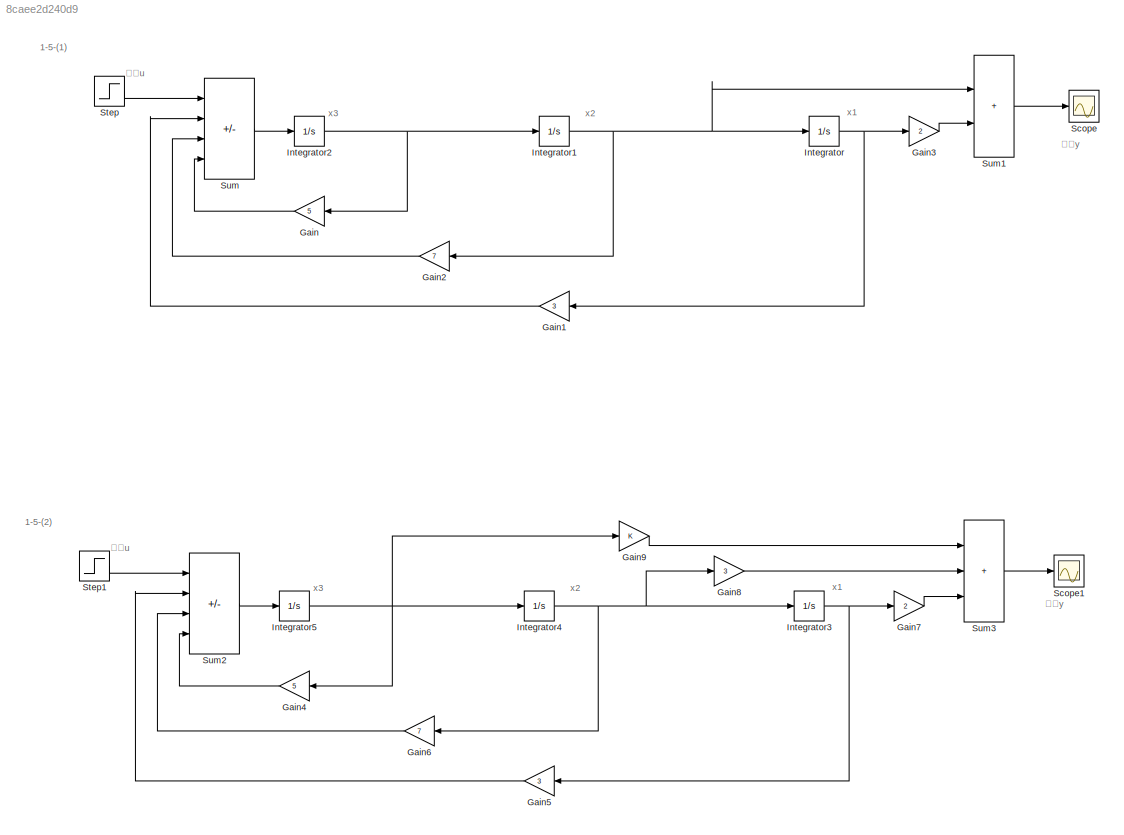
MODEL slx_8caee2d240d9
KIND model
CONFIG AbsTol = auto
CONFIG EnableMultiTasking = off
CONFIG FixedStep = auto
CONFIG MaxStep = auto
CONFIG MinStep = auto
CONFIG RelTol = 1e-3
CONFIG SampleTimeConstraint = Unconstrained
CONFIG SolverName = VariableStepAuto
CONFIG StartTime = 0.0
CONFIG StopTime = 10.0
BLOCK [Gain] Gain
  Gain = 5
  NameLocation = top
BLOCK [Gain] Gain1
  Gain = 3
  NameLocation = top
BLOCK [Gain] Gain2
  Gain = 7
  NameLocation = top
BLOCK [Gain] Gain3
  Gain = 2
BLOCK [Gain] Gain4
  Gain = 5
  NameLocation = top
BLOCK [Gain] Gain5
  Gain = 3
  NameLocation = top
BLOCK [Gain] Gain6
  Gain = 7
  NameLocation = top
BLOCK [Gain] Gain7
  Gain = 2
BLOCK [Gain] Gain8
  Gain = 3
BLOCK [Gain] Gain9
BLOCK [Integrator] Integrator
  Ports = [1, 1]
BLOCK [Integrator] Integrator1
  Ports = [1, 1]
BLOCK [Integrator] Integrator2
  Ports = [1, 1]
BLOCK [Integrator] Integrator3
  Ports = [1, 1]
BLOCK [Integrator] Integrator4
  Ports = [1, 1]
BLOCK [Integrator] Integrator5
  Ports = [1, 1]
BLOCK [Scope] Scope
  Floating = off
  NumInputPorts = 1
  Ports = [1]
  ScopeSpecificationString = Simulink.scopes.TimeScopeBlockCfg('CurrentConfiguration', extmgr.ConfigurationSet(extmgr.Configuration('Core','General UI',true),extmgr.Configuration('Core','Source UI',true),extmgr.Configuration('Sources','WiredSimulink',true),extmgr.Configuration('Visuals','Time Domain',true),extmgr.Configuration('Tools','Plot Navigation',true),extmgr.Configuration('Tools','Measurements',true)),'Version','2020b'...<+1ch>
BLOCK [Scope] Scope1
  Floating = off
  NumInputPorts = 1
  Ports = [1]
  ScopeSpecificationString = Simulink.scopes.TimeScopeBlockCfg('CurrentConfiguration', extmgr.ConfigurationSet(extmgr.Configuration('Core','General UI',true),extmgr.Configuration('Core','Source UI',true),extmgr.Configuration('Sources','WiredSimulink',true,'DataLoggingVariableName','ScopeData1'),extmgr.Configuration('Visuals','Time Domain',true),extmgr.Configuration('Tools','Plot Navigation',true),extmgr.Configuration('Tools',...<+40ch>
BLOCK [Step] Step
  SampleTime = 0
BLOCK [Step] Step1
  SampleTime = 0
BLOCK [Sum] Sum
  IconShape = rectangular
  Inputs = +---
  Ports = [4, 1]
BLOCK [Sum] Sum1
  IconShape = rectangular
  Ports = [2, 1]
BLOCK [Sum] Sum2
  IconShape = rectangular
  Inputs = +---
  Ports = [4, 1]
BLOCK [Sum] Sum3
  IconShape = rectangular
  Inputs = +++
  Ports = [3, 1]
ANNOTATION (root): 1-5-(1)
ANNOTATION (root): 1-5-(2)
ANNOTATION (root): x1
ANNOTATION (root): x2
ANNOTATION (root): x3
ANNOTATION (root): 输入u
ANNOTATION (root): 输出y
LINE Gain1:1 -> Sum:2
LINE Gain2:1 -> Sum:3
LINE Gain3:1 -> Sum1:2
LINE Gain4:1 -> Sum2:4
LINE Gain5:1 -> Sum2:2
LINE Gain6:1 -> Sum2:3
LINE Gain7:1 -> Sum3:3
LINE Gain8:1 -> Sum3:2
LINE Gain9:1 -> Sum3:1
LINE Gain:1 -> Sum:4
NET Integrator1:1 -> Gain2:1, Integrator:1, Sum1:1
NET Integrator2:1 -> Gain:1, Integrator1:1
NET Integrator3:1 -> Gain5:1, Gain7:1
NET Integrator4:1 -> Gain6:1, Gain8:1, Integrator3:1
NET Integrator5:1 -> Gain4:1, Gain9:1, Integrator4:1
NET Integrator:1 -> Gain1:1, Gain3:1
LINE Step1:1 -> Sum2:1
LINE Step:1 -> Sum:1
LINE Sum1:1 -> Scope:1
LINE Sum2:1 -> Integrator5:1
LINE Sum3:1 -> Scope1:1
LINE Sum:1 -> Integrator2:1
note: NET lines group one-source signal fan-out (src -> all destinations, sorted); 1:1 wires keep LINE
